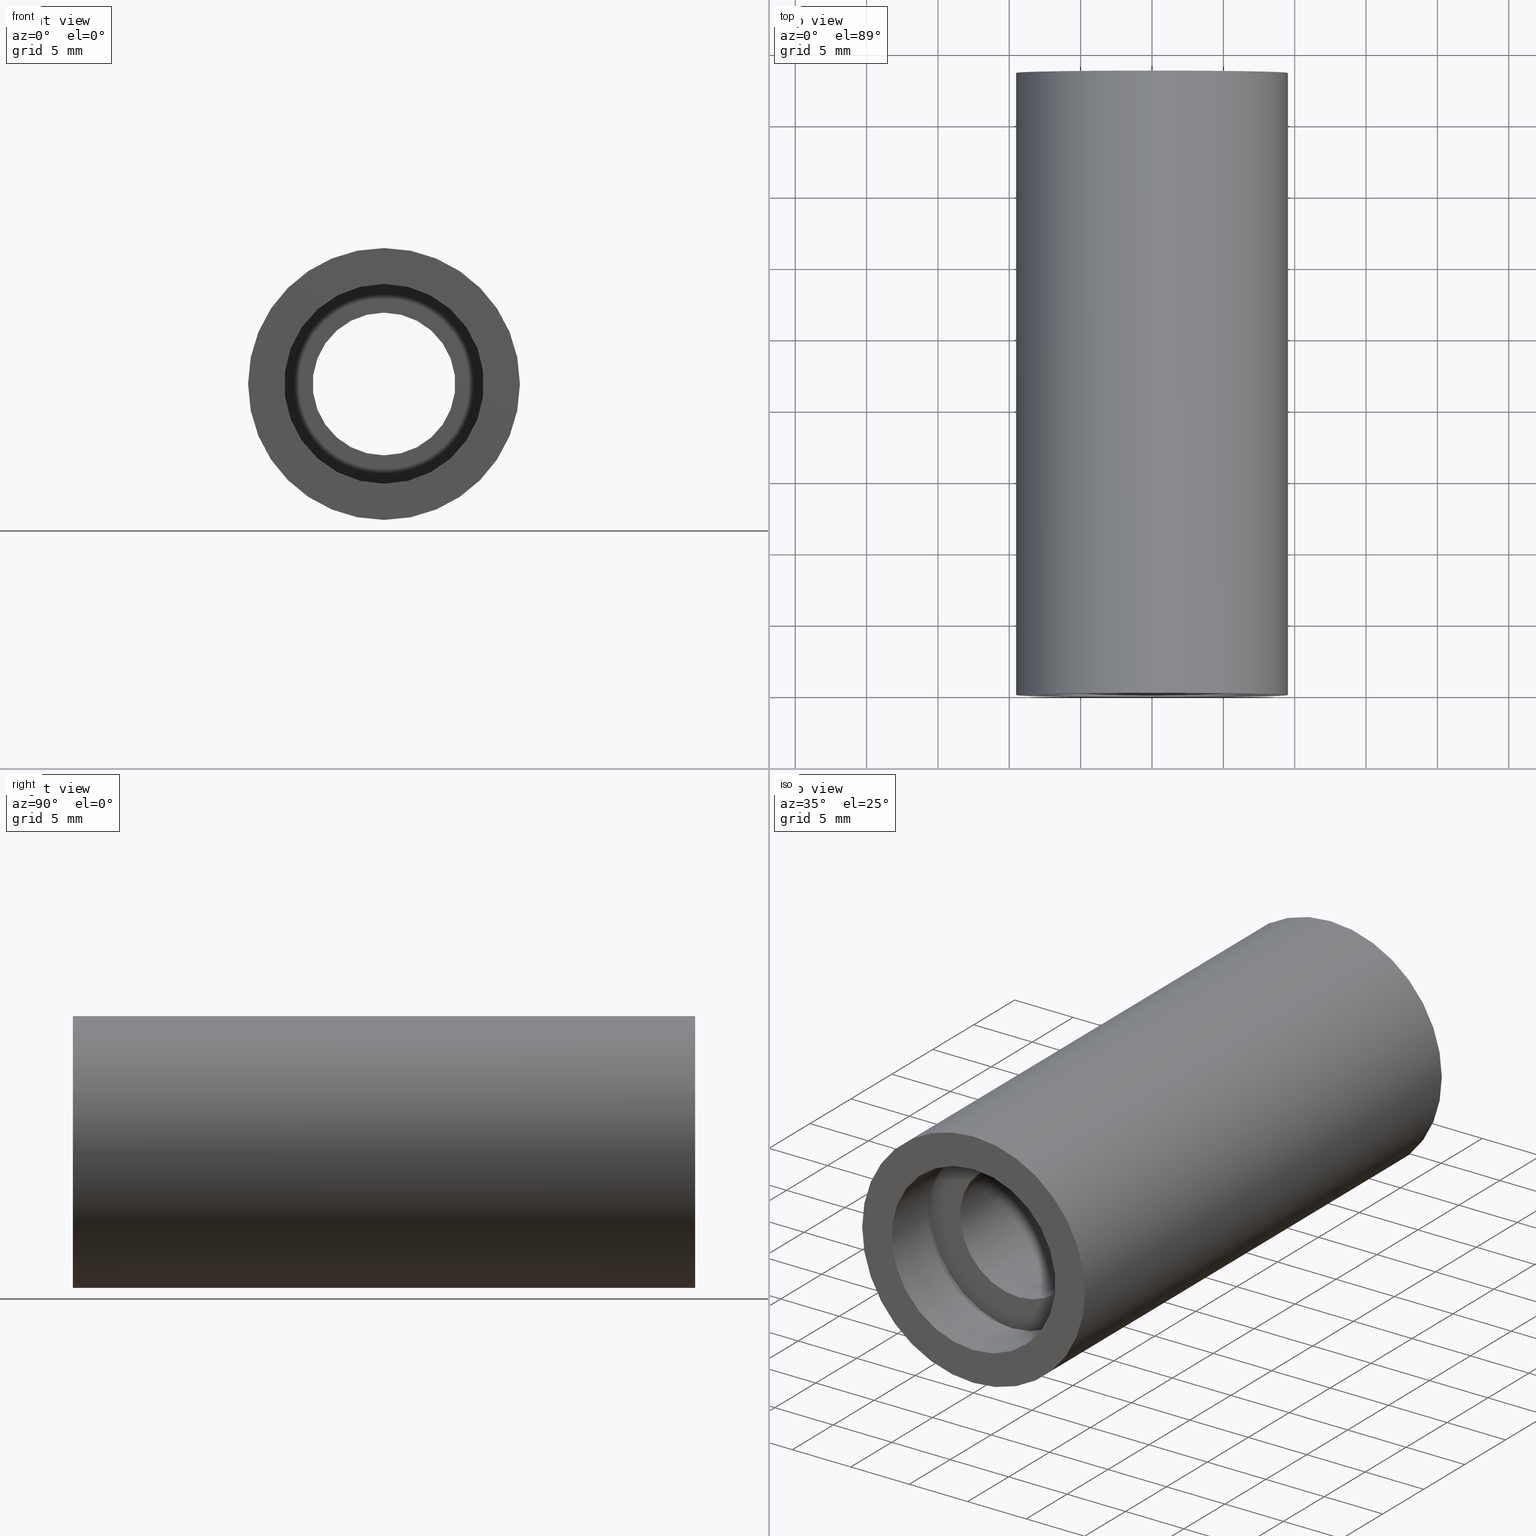
[diagram: canonical four-view strip — front | top / right | iso, engineering-drawing reading convention]
A machine part, canonical four-view strip (front | top / right | iso — engineering-drawing reading convention). The complete STEP part file that produces these views, byte-faithful:
ISO-10303-21;
HEADER;
FILE_DESCRIPTION (( 'STEP AP214' ),
    '1' );
FILE_NAME ('503096.STEP',
    '2019-09-11T08:00:23',
    ( '' ),
    ( '' ),
    'SwSTEP 2.0',
    'SolidWorks 2016',
    '' );
FILE_SCHEMA (( 'AUTOMOTIVE_DESIGN' ));
ENDSEC;

DATA;
#1 = AXIS2_PLACEMENT_3D ( 'NONE', #234, #435, #389 ) ;
#2 = PRESENTATION_STYLE_ASSIGNMENT (( #281 ) ) ;
#3 = ORIENTED_EDGE ( 'NONE', *, *, #343, .F. ) ;
#4 = DIRECTION ( 'NONE',  ( -0.0000000000000000000, 1.000000000000000000, -0.0000000000000000000 ) ) ;
#5 =( LENGTH_UNIT ( ) NAMED_UNIT ( * ) SI_UNIT ( .MILLI., .METRE. ) );
#6 = EDGE_CURVE ( 'NONE', #195, #543, #56, .T. ) ;
#7 = CARTESIAN_POINT ( 'NONE',  ( 0.0000000000000000000, 5.499999999999976900, 0.0000000000000000000 ) ) ;
#8 = CARTESIAN_POINT ( 'NONE',  ( 0.0000000000000000000, 161.3761669434274500, 0.0000000000000000000 ) ) ;
#9 = PRESENTATION_LAYER_ASSIGNMENT (  '', '', ( #105 ) ) ;
#10 = ORIENTED_EDGE ( 'NONE', *, *, #140, .F. ) ;
#11 =( NAMED_UNIT ( * ) PLANE_ANGLE_UNIT ( ) SI_UNIT ( $, .RADIAN. ) );
#12 = CARTESIAN_POINT ( 'NONE',  ( 0.0000000000000000000, 43.59999999999998700, 0.0000000000000000000 ) ) ;
#13 = ORIENTED_EDGE ( 'NONE', *, *, #353, .F. ) ;
#14 =( LENGTH_UNIT ( ) NAMED_UNIT ( * ) SI_UNIT ( .MILLI., .METRE. ) );
#15 = AXIS2_PLACEMENT_3D ( 'NONE', #260, #159, #317 ) ;
#16 = DIRECTION ( 'NONE',  ( -0.0000000000000000000, 1.000000000000000000, -0.0000000000000000000 ) ) ;
#17 = CIRCLE ( 'NONE', #482, 7.000000000000020400 ) ;
#18 = DIRECTION ( 'NONE',  ( 0.0000000000000000000, 0.0000000000000000000, 1.000000000000000000 ) ) ;
#19 = ORIENTED_EDGE ( 'NONE', *, *, #624, .T. ) ;
#20 =( NAMED_UNIT ( * ) PLANE_ANGLE_UNIT ( ) SI_UNIT ( $, .RADIAN. ) );
#21 = DIRECTION ( 'NONE',  ( -0.0000000000000000000, 1.000000000000000000, -0.0000000000000000000 ) ) ;
#22 = APPLICATION_CONTEXT ( 'automotive_design' ) ;
#23 = AXIS2_PLACEMENT_3D ( 'NONE', #605, #548, #369 ) ;
#24 = FILL_AREA_STYLE ('',( #31 ) ) ;
#25 = CARTESIAN_POINT ( 'NONE',  ( 0.0000000000000000000, 161.3761669434274500, 7.200000000000011700 ) ) ;
#26 = EDGE_LOOP ( 'NONE', ( #96, #129 ) ) ;
#27 = ORIENTED_EDGE ( 'NONE', *, *, #405, .F. ) ;
#28 = ORIENTED_EDGE ( 'NONE', *, *, #201, .F. ) ;
#29 = CARTESIAN_POINT ( 'NONE',  ( 9.307315673519907200E-016, 5.499999999999976900, -7.600000000000019200 ) ) ;
#30 = VECTOR ( 'NONE', #601, 1000.000000000000000 ) ;
#31 = FILL_AREA_STYLE_COLOUR ( '', #176 ) ;
#32 = PLANE ( 'NONE',  #1 ) ;
#33 = AXIS2_PLACEMENT_3D ( 'NONE', #423, #21, #413 ) ;
#34 = CARTESIAN_POINT ( 'NONE',  ( 0.0000000000000000000, -2.775557561562891400E-014, 9.525000000000019900 ) ) ;
#35 = AXIS2_PLACEMENT_3D ( 'NONE', #386, #241, #388 ) ;
#36 = UNCERTAINTY_MEASURE_WITH_UNIT (LENGTH_MEASURE( 1.000000000000000100E-005 ), #5, 'distance_accuracy_value', 'NONE');
#37 = ORIENTED_EDGE ( 'NONE', *, *, #445, .T. ) ;
#38 = ORIENTED_EDGE ( 'NONE', *, *, #475, .T. ) ;
#39 = VERTEX_POINT ( 'NONE', #192 ) ;
#40 =( GEOMETRIC_REPRESENTATION_CONTEXT ( 3 ) GLOBAL_UNCERTAINTY_ASSIGNED_CONTEXT ( ( #453 ) ) GLOBAL_UNIT_ASSIGNED_CONTEXT ( ( #324, #20, #415 ) ) REPRESENTATION_CONTEXT ( 'NONE', 'WORKASPACE' ) );
#41 = FACE_OUTER_BOUND ( 'NONE', #575, .T. ) ;
#42 = PLANE ( 'NONE',  #318 ) ;
#43 = LINE ( 'NONE', #556, #333 ) ;
#44 = MECHANICAL_DESIGN_GEOMETRIC_PRESENTATION_REPRESENTATION (  '', ( #236 ), #373 ) ;
#45 = CIRCLE ( 'NONE', #419, 7.600000000000019200 ) ;
#46 = DIRECTION ( 'NONE',  ( -0.0000000000000000000, 1.000000000000000000, -0.0000000000000000000 ) ) ;
#47 = EDGE_CURVE ( 'NONE', #167, #495, #444, .T. ) ;
#48 = CARTESIAN_POINT ( 'NONE',  ( 0.0000000000000000000, 43.59999999999998700, 0.0000000000000000000 ) ) ;
#49 = PRESENTATION_STYLE_ASSIGNMENT (( #313 ) ) ;
#50 = EDGE_LOOP ( 'NONE', ( #113, #53, #296, #216 ) ) ;
#51 = DIRECTION ( 'NONE',  ( -0.0000000000000000000, 1.000000000000000000, -0.0000000000000000000 ) ) ;
#52 =( NAMED_UNIT ( * ) SI_UNIT ( $, .STERADIAN. ) SOLID_ANGLE_UNIT ( ) );
#53 = ORIENTED_EDGE ( 'NONE', *, *, #182, .F. ) ;
#54 = MECHANICAL_DESIGN_GEOMETRIC_PRESENTATION_REPRESENTATION (  '', ( #57 ), #226 ) ;
#55 =( NAMED_UNIT ( * ) SI_UNIT ( $, .STERADIAN. ) SOLID_ANGLE_UNIT ( ) );
#56 = CIRCLE ( 'NONE', #332, 5.000000000000019500 ) ;
#57 = STYLED_ITEM ( 'NONE', ( #488 ), #613 ) ;
#58 = ADVANCED_FACE ( 'NONE', ( #549 ), #404, .T. ) ;
#59 = CIRCLE ( 'NONE', #578, 7.000000000000020400 ) ;
#60 = PLANE ( 'NONE',  #91 ) ;
#61 = DIRECTION ( 'NONE',  ( -0.0000000000000000000, 1.000000000000000000, -0.0000000000000000000 ) ) ;
#62 = CARTESIAN_POINT ( 'NONE',  ( 8.817456953860957100E-016, 161.3761669434274500, -7.200000000000011700 ) ) ;
#63 = AXIS2_PLACEMENT_3D ( 'NONE', #552, #507, #267 ) ;
#64 = CARTESIAN_POINT ( 'NONE',  ( 5.000000000000019500, 5.499999999999983100, 0.0000000000000000000 ) ) ;
#65 = SURFACE_STYLE_FILL_AREA ( #484 ) ;
#66 = DIRECTION ( 'NONE',  ( 0.0000000000000000000, 0.0000000000000000000, 1.000000000000000000 ) ) ;
#67 = CARTESIAN_POINT ( 'NONE',  ( 0.0000000000000000000, 43.59999999999998700, 0.0000000000000000000 ) ) ;
#68 = EDGE_LOOP ( 'NONE', ( #13, #28, #356, #608 ) ) ;
#69 = DIRECTION ( 'NONE',  ( 0.0000000000000000000, 0.0000000000000000000, 1.000000000000000000 ) ) ;
#70 = ORIENTED_EDGE ( 'NONE', *, *, #521, .T. ) ;
#71 = SURFACE_STYLE_FILL_AREA ( #104 ) ;
#72 = CARTESIAN_POINT ( 'NONE',  ( 8.817456953860959100E-016, 43.59999999999998700, -7.200000000000013500 ) ) ;
#73 = FACE_OUTER_BOUND ( 'NONE', #279, .T. ) ;
#74 = ADVANCED_FACE ( 'NONE', ( #461, #90 ), #42, .F. ) ;
#75 = CARTESIAN_POINT ( 'NONE',  ( 0.0000000000000000000, -2.775557561562891400E-014, 7.000000000000020400 ) ) ;
#76 = STYLED_ITEM ( 'NONE', ( #623 ), #146 ) ;
#77 =( LENGTH_UNIT ( ) NAMED_UNIT ( * ) SI_UNIT ( .MILLI., .METRE. ) );
#78 = CIRCLE ( 'NONE', #303, 7.600000000000019200 ) ;
#79 = CARTESIAN_POINT ( 'NONE',  ( 0.0000000000000000000, 161.3761669434274500, 0.0000000000000000000 ) ) ;
#80 = ORIENTED_EDGE ( 'NONE', *, *, #322, .F. ) ;
#81 = EDGE_CURVE ( 'NONE', #426, #531, #489, .T. ) ;
#82 = SURFACE_STYLE_FILL_AREA ( #466 ) ;
#83 = DIRECTION ( 'NONE',  ( 0.0000000000000000000, 0.0000000000000000000, 1.000000000000000000 ) ) ;
#84 = DIRECTION ( 'NONE',  ( -0.0000000000000000000, 1.000000000000000000, -0.0000000000000000000 ) ) ;
#85 = ORIENTED_EDGE ( 'NONE', *, *, #249, .F. ) ;
#86 = AXIS2_PLACEMENT_3D ( 'NONE', #7, #4, #455 ) ;
#87 = ORIENTED_EDGE ( 'NONE', *, *, #107, .T. ) ;
#88 = CYLINDRICAL_SURFACE ( 'NONE', #288, 7.600000000000019200 ) ;
#89 = CARTESIAN_POINT ( 'NONE',  ( 0.0000000000000000000, 5.499999999999976900, 0.0000000000000000000 ) ) ;
#90 = FACE_OUTER_BOUND ( 'NONE', #427, .T. ) ;
#91 = AXIS2_PLACEMENT_3D ( 'NONE', #64, #614, #276 ) ;
#92 = DIRECTION ( 'NONE',  ( -0.0000000000000000000, 1.000000000000000000, -0.0000000000000000000 ) ) ;
#93 = ORIENTED_EDGE ( 'NONE', *, *, #533, .T. ) ;
#94 = DIRECTION ( 'NONE',  ( -0.0000000000000000000, 1.000000000000000000, -0.0000000000000000000 ) ) ;
#95 = EDGE_CURVE ( 'NONE', #531, #39, #257, .T. ) ;
#96 = ORIENTED_EDGE ( 'NONE', *, *, #182, .T. ) ;
#97 = DIRECTION ( 'NONE',  ( -0.0000000000000000000, 1.000000000000000000, -0.0000000000000000000 ) ) ;
#98 = CARTESIAN_POINT ( 'NONE',  ( 9.307315673519907200E-016, 161.3761669434274500, -7.600000000000019200 ) ) ;
#99 = VERTEX_POINT ( 'NONE', #447 ) ;
#100 = DIRECTION ( 'NONE',  ( 0.0000000000000000000, 0.0000000000000000000, 1.000000000000000000 ) ) ;
#101 = DIRECTION ( 'NONE',  ( -0.0000000000000000000, 1.000000000000000000, -0.0000000000000000000 ) ) ;
#102 = ORIENTED_EDGE ( 'NONE', *, *, #179, .T. ) ;
#103 = FACE_OUTER_BOUND ( 'NONE', #588, .T. ) ;
#104 = FILL_AREA_STYLE ('',( #587 ) ) ;
#105 = STYLED_ITEM ( 'NONE', ( #49 ), #272 ) ;
#106 = FILL_AREA_STYLE_COLOUR ( '', #214 ) ;
#107 = EDGE_CURVE ( 'NONE', #543, #195, #512, .T. ) ;
#108 = DIRECTION ( 'NONE',  ( -0.0000000000000000000, 1.000000000000000000, -0.0000000000000000000 ) ) ;
#109 = CYLINDRICAL_SURFACE ( 'NONE', #560, 5.000000000000019500 ) ;
#110 = APPLICATION_CONTEXT ( 'automotive_design' ) ;
#111 = FACE_BOUND ( 'NONE', #506, .T. ) ;
#112 = CARTESIAN_POINT ( 'NONE',  ( 8.817456953860957100E-016, 39.09999999999999400, -7.200000000000011700 ) ) ;
#113 = ORIENTED_EDGE ( 'NONE', *, *, #568, .F. ) ;
#114 = EDGE_LOOP ( 'NONE', ( #187, #439, #344, #37 ) ) ;
#115 = VECTOR ( 'NONE', #94, 1000.000000000000000 ) ;
#116 = DIRECTION ( 'NONE',  ( 0.0000000000000000000, 0.0000000000000000000, 1.000000000000000000 ) ) ;
#117 = CIRCLE ( 'NONE', #35, 9.525000000000019900 ) ;
#118 = ORIENTED_EDGE ( 'NONE', *, *, #475, .F. ) ;
#119 = UNCERTAINTY_MEASURE_WITH_UNIT (LENGTH_MEASURE( 1.000000000000000100E-005 ), #381, 'distance_accuracy_value', 'NONE');
#120 = DIRECTION ( 'NONE',  ( 0.0000000000000000000, 0.0000000000000000000, 1.000000000000000000 ) ) ;
#121 =( GEOMETRIC_REPRESENTATION_CONTEXT ( 3 ) GLOBAL_UNCERTAINTY_ASSIGNED_CONTEXT ( ( #36 ) ) GLOBAL_UNIT_ASSIGNED_CONTEXT ( ( #5, #355, #544 ) ) REPRESENTATION_CONTEXT ( 'NONE', 'WORKASPACE' ) );
#122 = DIRECTION ( 'NONE',  ( -0.0000000000000000000, 1.000000000000000000, -0.0000000000000000000 ) ) ;
#123 = DIRECTION ( 'NONE',  ( 0.0000000000000000000, 0.0000000000000000000, 1.000000000000000000 ) ) ;
#124 = ADVANCED_FACE ( 'NONE', ( #592 ), #135, .T. ) ;
#125 = COLOUR_RGB ( '',1.000000000000000000, 1.000000000000000000, 1.000000000000000000 ) ;
#126 = SURFACE_SIDE_STYLE ('',( #370 ) ) ;
#127 = FACE_BOUND ( 'NONE', #26, .T. ) ;
#128 = UNCERTAINTY_MEASURE_WITH_UNIT (LENGTH_MEASURE( 1.000000000000000100E-005 ), #265, 'distance_accuracy_value', 'NONE');
#129 = ORIENTED_EDGE ( 'NONE', *, *, #140, .T. ) ;
#130 = DIRECTION ( 'NONE',  ( 0.0000000000000000000, 0.0000000000000000000, 1.000000000000000000 ) ) ;
#131 = AXIS2_PLACEMENT_3D ( 'NONE', #152, #307, #145 ) ;
#132 = DIRECTION ( 'NONE',  ( -0.0000000000000000000, 1.000000000000000000, -0.0000000000000000000 ) ) ;
#133 = STYLED_ITEM ( 'NONE', ( #468 ), #593 ) ;
#134 = FILL_AREA_STYLE_COLOUR ( '', #450 ) ;
#135 = CYLINDRICAL_SURFACE ( 'NONE', #163, 9.525000000000019900 ) ;
#136 = CARTESIAN_POINT ( 'NONE',  ( 0.0000000000000000000, 161.3761669434274500, 5.000000000000019500 ) ) ;
#137 = ORIENTED_EDGE ( 'NONE', *, *, #285, .F. ) ;
#138 = AXIS2_PLACEMENT_3D ( 'NONE', #363, #18, #215 ) ;
#139 = EDGE_LOOP ( 'NONE', ( #70, #599 ) ) ;
#140 = EDGE_CURVE ( 'NONE', #219, #99, #177, .T. ) ;
#141 = CIRCLE ( 'NONE', #558, 7.000000000000020400 ) ;
#142 = CARTESIAN_POINT ( 'NONE',  ( 5.000000000000019500, 38.09999999999998700, 0.0000000000000000000 ) ) ;
#143 = ORIENTED_EDGE ( 'NONE', *, *, #521, .F. ) ;
#144 = DIRECTION ( 'NONE',  ( -0.0000000000000000000, 1.000000000000000000, -0.0000000000000000000 ) ) ;
#145 = DIRECTION ( 'NONE',  ( 0.0000000000000000000, 0.0000000000000000000, 1.000000000000000000 ) ) ;
#146 = MANIFOLD_SOLID_BREP ( '��ת1', #242 ) ;
#147 = CARTESIAN_POINT ( 'NONE',  ( 0.0000000000000000000, 5.499999999999976900, 0.0000000000000000000 ) ) ;
#148 = CARTESIAN_POINT ( 'NONE',  ( 0.0000000000000000000, 38.09999999999999400, 5.000000000000019500 ) ) ;
#149 = CARTESIAN_POINT ( 'NONE',  ( 0.0000000000000000000, 38.09999999999999400, 0.0000000000000000000 ) ) ;
#150 =( NAMED_UNIT ( * ) PLANE_ANGLE_UNIT ( ) SI_UNIT ( $, .RADIAN. ) );
#151 =( GEOMETRIC_REPRESENTATION_CONTEXT ( 3 ) GLOBAL_UNCERTAINTY_ASSIGNED_CONTEXT ( ( #357 ) ) GLOBAL_UNIT_ASSIGNED_CONTEXT ( ( #14, #11, #161 ) ) REPRESENTATION_CONTEXT ( 'NONE', 'WORKASPACE' ) );
#152 = CARTESIAN_POINT ( 'NONE',  ( 0.0000000000000000000, -2.775557561562891400E-014, 0.0000000000000000000 ) ) ;
#153 = ORIENTED_EDGE ( 'NONE', *, *, #585, .F. ) ;
#154 = ORIENTED_EDGE ( 'NONE', *, *, #81, .F. ) ;
#155 = ADVANCED_FACE ( 'NONE', ( #246 ), #485, .F. ) ;
#156 = AXIS2_PLACEMENT_3D ( 'NONE', #218, #479, #69 ) ;
#157 = ORIENTED_EDGE ( 'NONE', *, *, #367, .T. ) ;
#158 = CIRCLE ( 'NONE', #537, 9.525000000000019900 ) ;
#159 = DIRECTION ( 'NONE',  ( 0.0000000000000000000, -1.000000000000000000, 0.0000000000000000000 ) ) ;
#160 = CIRCLE ( 'NONE', #33, 7.200000000000011700 ) ;
#161 =( NAMED_UNIT ( * ) SI_UNIT ( $, .STERADIAN. ) SOLID_ANGLE_UNIT ( ) );
#162 = SURFACE_SIDE_STYLE ('',( #82 ) ) ;
#163 = AXIS2_PLACEMENT_3D ( 'NONE', #499, #582, #541 ) ;
#164 = PLANE ( 'NONE',  #15 ) ;
#165 = AXIS2_PLACEMENT_3D ( 'NONE', #79, #621, #83 ) ;
#166 = VECTOR ( 'NONE', #84, 1000.000000000000000 ) ;
#167 = VERTEX_POINT ( 'NONE', #252 ) ;
#168 =( NAMED_UNIT ( * ) PLANE_ANGLE_UNIT ( ) SI_UNIT ( $, .RADIAN. ) );
#169 = CARTESIAN_POINT ( 'NONE',  ( 0.0000000000000000000, 39.09999999999999400, 0.0000000000000000000 ) ) ;
#170 = ORIENTED_EDGE ( 'NONE', *, *, #95, .T. ) ;
#171 = PRODUCT_DEFINITION_CONTEXT ( 'detailed design', #110, 'design' ) ;
#172 = ORIENTED_EDGE ( 'NONE', *, *, #528, .T. ) ;
#173 = DIRECTION ( 'NONE',  ( 0.0000000000000000000, 0.0000000000000000000, 1.000000000000000000 ) ) ;
#174 = EDGE_LOOP ( 'NONE', ( #342, #286, #118, #563 ) ) ;
#175 = ADVANCED_FACE ( 'NONE', ( #360 ), #220, .F. ) ;
#176 = COLOUR_RGB ( '',1.000000000000000000, 1.000000000000000000, 1.000000000000000000 ) ;
#177 = CIRCLE ( 'NONE', #295, 5.000000000000019500 ) ;
#178 = SURFACE_STYLE_FILL_AREA ( #474 ) ;
#179 = EDGE_CURVE ( 'NONE', #561, #39, #376, .T. ) ;
#180 = CARTESIAN_POINT ( 'NONE',  ( 9.307315673519907200E-016, 38.09999999999999400, -7.600000000000019200 ) ) ;
#181 = SURFACE_SIDE_STYLE ('',( #65 ) ) ;
#182 = EDGE_CURVE ( 'NONE', #99, #219, #240, .T. ) ;
#183 = VERTEX_POINT ( 'NONE', #456 ) ;
#184 = EDGE_LOOP ( 'NONE', ( #154, #172, #102, #547 ) ) ;
#185 = PRODUCT_DEFINITION_FORMATION_WITH_SPECIFIED_SOURCE ( '�κ�', '', #383, .NOT_KNOWN. ) ;
#186 = DIRECTION ( 'NONE',  ( -0.0000000000000000000, 1.000000000000000000, -0.0000000000000000000 ) ) ;
#187 = ORIENTED_EDGE ( 'NONE', *, *, #255, .F. ) ;
#188 = VERTEX_POINT ( 'NONE', #459 ) ;
#189 = MECHANICAL_DESIGN_GEOMETRIC_PRESENTATION_REPRESENTATION (  '', ( #76 ), #121 ) ;
#190 = CARTESIAN_POINT ( 'NONE',  ( 1.166476076187856400E-015, 161.3761669434274500, -9.525000000000019900 ) ) ;
#191 = COLOUR_RGB ( '',1.000000000000000000, 1.000000000000000000, 1.000000000000000000 ) ;
#192 = CARTESIAN_POINT ( 'NONE',  ( 0.0000000000000000000, 43.59999999999998700, 9.525000000000019900 ) ) ;
#193 = CARTESIAN_POINT ( 'NONE',  ( 0.0000000000000000000, 39.09999999999999400, 7.600000000000019200 ) ) ;
#194 = AXIS2_PLACEMENT_3D ( 'NONE', #248, #395, #254 ) ;
#195 = VERTEX_POINT ( 'NONE', #148 ) ;
#196 = EDGE_LOOP ( 'NONE', ( #325, #619 ) ) ;
#197 = AXIS2_PLACEMENT_3D ( 'NONE', #289, #525, #130 ) ;
#198 = CARTESIAN_POINT ( 'NONE',  ( 0.0000000000000000000, 161.3761669434274500, 0.0000000000000000000 ) ) ;
#199 = CARTESIAN_POINT ( 'NONE',  ( 0.0000000000000000000, 161.3761669434274500, 9.525000000000019900 ) ) ;
#200 = FILL_AREA_STYLE_COLOUR ( '', #277 ) ;
#201 = EDGE_CURVE ( 'NONE', #428, #498, #78, .T. ) ;
#202 = VERTEX_POINT ( 'NONE', #308 ) ;
#203 = FILL_AREA_STYLE ('',( #256 ) ) ;
#204 = ORIENTED_EDGE ( 'NONE', *, *, #411, .F. ) ;
#205 = CIRCLE ( 'NONE', #211, 7.600000000000019200 ) ;
#206 = FACE_BOUND ( 'NONE', #311, .T. ) ;
#207 = CARTESIAN_POINT ( 'NONE',  ( 7.000000000000020400, -1.634585625335647100E-014, 0.0000000000000000000 ) ) ;
#208 = DIRECTION ( 'NONE',  ( 0.0000000000000000000, 0.0000000000000000000, 1.000000000000000000 ) ) ;
#209 = EDGE_CURVE ( 'NONE', #561, #426, #554, .T. ) ;
#210 = CARTESIAN_POINT ( 'NONE',  ( 8.572527594031496900E-016, 4.499999999999976000, -7.000000000000020400 ) ) ;
#211 = AXIS2_PLACEMENT_3D ( 'NONE', #291, #576, #231 ) ;
#212 = APPLICATION_PROTOCOL_DEFINITION ( 'draft international standard', 'automotive_design', 1998, #22 ) ;
#213 = ORIENTED_EDGE ( 'NONE', *, *, #501, .T. ) ;
#214 = COLOUR_RGB ( '',1.000000000000000000, 1.000000000000000000, 1.000000000000000000 ) ;
#215 = DIRECTION ( 'NONE',  ( 1.000000000000000000, 0.0000000000000000000, 0.0000000000000000000 ) ) ;
#216 = ORIENTED_EDGE ( 'NONE', *, *, #6, .T. ) ;
#217 = CARTESIAN_POINT ( 'NONE',  ( 8.572527594031496900E-016, 161.3761669434274500, -7.000000000000020400 ) ) ;
#218 = CARTESIAN_POINT ( 'NONE',  ( 0.0000000000000000000, 161.3761669434274500, 0.0000000000000000000 ) ) ;
#219 = VERTEX_POINT ( 'NONE', #302 ) ;
#220 = CYLINDRICAL_SURFACE ( 'NONE', #490, 7.000000000000020400 ) ;
#221 = CARTESIAN_POINT ( 'NONE',  ( 8.572527594031496900E-016, -2.775557561562891400E-014, -7.000000000000020400 ) ) ;
#222 = ORIENTED_EDGE ( 'NONE', *, *, #209, .F. ) ;
#223 = PRODUCT_RELATED_PRODUCT_CATEGORY ( 'part', '', ( #383 ) ) ;
#224 = COLOUR_RGB ( '',1.000000000000000000, 1.000000000000000000, 1.000000000000000000 ) ;
#225 = DIRECTION ( 'NONE',  ( -0.0000000000000000000, 1.000000000000000000, -0.0000000000000000000 ) ) ;
#226 =( GEOMETRIC_REPRESENTATION_CONTEXT ( 3 ) GLOBAL_UNCERTAINTY_ASSIGNED_CONTEXT ( ( #128 ) ) GLOBAL_UNIT_ASSIGNED_CONTEXT ( ( #265, #595, #366 ) ) REPRESENTATION_CONTEXT ( 'NONE', 'WORKASPACE' ) );
#227 = FILL_AREA_STYLE_COLOUR ( '', #191 ) ;
#228 = AXIS2_PLACEMENT_3D ( 'NONE', #245, #292, #337 ) ;
#229 = CARTESIAN_POINT ( 'NONE',  ( 0.0000000000000000000, 4.499999999999976000, 7.600000000000019200 ) ) ;
#230 = EDGE_CURVE ( 'NONE', #430, #235, #45, .T. ) ;
#231 = DIRECTION ( 'NONE',  ( 0.0000000000000000000, 0.0000000000000000000, 1.000000000000000000 ) ) ;
#232 = ADVANCED_FACE ( 'NONE', ( #336 ), #492, .F. ) ;
#233 = LINE ( 'NONE', #98, #534 ) ;
#234 = CARTESIAN_POINT ( 'NONE',  ( 7.000000000000020400, 4.499999999999983100, 0.0000000000000000000 ) ) ;
#235 = VERTEX_POINT ( 'NONE', #193 ) ;
#236 = STYLED_ITEM ( 'NONE', ( #2 ), #433 ) ;
#237 = CARTESIAN_POINT ( 'NONE',  ( 0.0000000000000000000, 39.09999999999999400, 0.0000000000000000000 ) ) ;
#238 = PRESENTATION_LAYER_ASSIGNMENT (  '', '', ( #133 ) ) ;
#239 = ORIENTED_EDGE ( 'NONE', *, *, #429, .T. ) ;
#240 = CIRCLE ( 'NONE', #86, 5.000000000000019500 ) ;
#241 = DIRECTION ( 'NONE',  ( -0.0000000000000000000, 1.000000000000000000, -0.0000000000000000000 ) ) ;
#242 = CLOSED_SHELL ( 'NONE', ( #593, #546, #519, #463, #433, #124, #362, #58, #261, #232, #569, #283, #74, #613, #414, #155, #610, #175 ) ) ;
#243 = VECTOR ( 'NONE', #132, 1000.000000000000000 ) ;
#244 = LINE ( 'NONE', #25, #442 ) ;
#245 = CARTESIAN_POINT ( 'NONE',  ( 0.0000000000000000000, 161.3761669434274500, 0.0000000000000000000 ) ) ;
#246 = FACE_OUTER_BOUND ( 'NONE', #68, .T. ) ;
#247 = DIRECTION ( 'NONE',  ( 0.0000000000000000000, 0.0000000000000000000, 1.000000000000000000 ) ) ;
#248 = CARTESIAN_POINT ( 'NONE',  ( 0.0000000000000000000, 161.3761669434274500, 0.0000000000000000000 ) ) ;
#249 = EDGE_CURVE ( 'NONE', #451, #440, #17, .T. ) ;
#250 = CIRCLE ( 'NONE', #340, 7.000000000000020400 ) ;
#251 = VECTOR ( 'NONE', #467, 1000.000000000000000 ) ;
#252 = CARTESIAN_POINT ( 'NONE',  ( 0.0000000000000000000, 5.499999999999976900, 7.600000000000019200 ) ) ;
#253 = ORIENTED_EDGE ( 'NONE', *, *, #536, .T. ) ;
#254 = DIRECTION ( 'NONE',  ( 0.0000000000000000000, 0.0000000000000000000, 1.000000000000000000 ) ) ;
#255 = EDGE_CURVE ( 'NONE', #545, #430, #233, .T. ) ;
#256 = FILL_AREA_STYLE_COLOUR ( '', #320 ) ;
#257 = CIRCLE ( 'NONE', #399, 9.525000000000019900 ) ;
#258 = CARTESIAN_POINT ( 'NONE',  ( 0.0000000000000000000, 39.09999999999999400, 0.0000000000000000000 ) ) ;
#259 = AXIS2_PLACEMENT_3D ( 'NONE', #89, #92, #349 ) ;
#260 = CARTESIAN_POINT ( 'NONE',  ( 7.200000000000012600, 43.59999999999998700, 0.0000000000000000000 ) ) ;
#261 = ADVANCED_FACE ( 'NONE', ( #206, #297 ), #164, .F. ) ;
#262 = CARTESIAN_POINT ( 'NONE',  ( 9.307315673519907200E-016, 161.3761669434274500, -7.600000000000019200 ) ) ;
#263 = EDGE_CURVE ( 'NONE', #451, #293, #462, .T. ) ;
#264 = FACE_OUTER_BOUND ( 'NONE', #458, .T. ) ;
#265 =( LENGTH_UNIT ( ) NAMED_UNIT ( * ) SI_UNIT ( .MILLI., .METRE. ) );
#266 = CIRCLE ( 'NONE', #23, 7.200000000000012600 ) ;
#267 = DIRECTION ( 'NONE',  ( 0.0000000000000000000, 0.0000000000000000000, 1.000000000000000000 ) ) ;
#268 = VERTEX_POINT ( 'NONE', #581 ) ;
#269 = CARTESIAN_POINT ( 'NONE',  ( 0.0000000000000000000, 4.499999999999976000, 0.0000000000000000000 ) ) ;
#270 = DIRECTION ( 'NONE',  ( -0.0000000000000000000, 1.000000000000000000, 0.0000000000000000000 ) ) ;
#271 = SURFACE_STYLE_USAGE ( .BOTH. , #126 ) ;
#272 = ADVANCED_BREP_SHAPE_REPRESENTATION ( '503096', ( #146, #138 ), #40 ) ;
#273 = AXIS2_PLACEMENT_3D ( 'NONE', #207, #270, #551 ) ;
#274 = ORIENTED_EDGE ( 'NONE', *, *, #378, .T. ) ;
#275 = MECHANICAL_DESIGN_GEOMETRIC_PRESENTATION_REPRESENTATION (  '', ( #133 ), #305 ) ;
#276 = DIRECTION ( 'NONE',  ( 0.0000000000000000000, 0.0000000000000000000, 1.000000000000000000 ) ) ;
#277 = COLOUR_RGB ( '',1.000000000000000000, 1.000000000000000000, 1.000000000000000000 ) ;
#278 = CARTESIAN_POINT ( 'NONE',  ( 1.166476076187856400E-015, 43.59999999999998700, -9.525000000000019900 ) ) ;
#279 = EDGE_LOOP ( 'NONE', ( #80, #562, #274, #566 ) ) ;
#280 = ORIENTED_EDGE ( 'NONE', *, *, #367, .F. ) ;
#281 = SURFACE_STYLE_USAGE ( .BOTH. , #607 ) ;
#282 = ORIENTED_EDGE ( 'NONE', *, *, #624, .F. ) ;
#283 = ADVANCED_FACE ( 'NONE', ( #518 ), #385, .F. ) ;
#284 = SHAPE_DEFINITION_REPRESENTATION ( #583, #272 ) ;
#285 = EDGE_CURVE ( 'NONE', #495, #167, #396, .T. ) ;
#286 = ORIENTED_EDGE ( 'NONE', *, *, #81, .T. ) ;
#287 = CARTESIAN_POINT ( 'NONE',  ( 6.123233995736789000E-016, 161.3761669434274500, -5.000000000000019500 ) ) ;
#288 = AXIS2_PLACEMENT_3D ( 'NONE', #559, #425, #173 ) ;
#289 = CARTESIAN_POINT ( 'NONE',  ( 7.200000000000011700, 39.09999999999998700, 0.0000000000000000000 ) ) ;
#290 = FACE_OUTER_BOUND ( 'NONE', #50, .T. ) ;
#291 = CARTESIAN_POINT ( 'NONE',  ( 0.0000000000000000000, 38.09999999999999400, 0.0000000000000000000 ) ) ;
#292 = DIRECTION ( 'NONE',  ( -0.0000000000000000000, 1.000000000000000000, -0.0000000000000000000 ) ) ;
#293 = VERTEX_POINT ( 'NONE', #210 ) ;
#294 = ORIENTED_EDGE ( 'NONE', *, *, #47, .F. ) ;
#295 = AXIS2_PLACEMENT_3D ( 'NONE', #147, #51, #401 ) ;
#296 = ORIENTED_EDGE ( 'NONE', *, *, #571, .T. ) ;
#297 = FACE_OUTER_BOUND ( 'NONE', #586, .T. ) ;
#298 = DIRECTION ( 'NONE',  ( 0.0000000000000000000, -0.0000000000000000000, -1.000000000000000000 ) ) ;
#299 = DIRECTION ( 'NONE',  ( -0.0000000000000000000, 1.000000000000000000, -0.0000000000000000000 ) ) ;
#300 = SURFACE_STYLE_FILL_AREA ( #203 ) ;
#301 =( LENGTH_UNIT ( ) NAMED_UNIT ( * ) SI_UNIT ( .MILLI., .METRE. ) );
#302 = CARTESIAN_POINT ( 'NONE',  ( 6.123233995736789000E-016, 5.499999999999976900, -5.000000000000019500 ) ) ;
#303 = AXIS2_PLACEMENT_3D ( 'NONE', #354, #351, #403 ) ;
#304 = LINE ( 'NONE', #287, #243 ) ;
#305 =( GEOMETRIC_REPRESENTATION_CONTEXT ( 3 ) GLOBAL_UNCERTAINTY_ASSIGNED_CONTEXT ( ( #602 ) ) GLOBAL_UNIT_ASSIGNED_CONTEXT ( ( #341, #487, #523 ) ) REPRESENTATION_CONTEXT ( 'NONE', 'WORKASPACE' ) );
#306 = SURFACE_STYLE_USAGE ( .BOTH. , #452 ) ;
#307 = DIRECTION ( 'NONE',  ( -0.0000000000000000000, 1.000000000000000000, -0.0000000000000000000 ) ) ;
#308 = CARTESIAN_POINT ( 'NONE',  ( 0.0000000000000000000, 38.09999999999999400, 7.600000000000019200 ) ) ;
#309 = ORIENTED_EDGE ( 'NONE', *, *, #255, .T. ) ;
#310 = ORIENTED_EDGE ( 'NONE', *, *, #445, .F. ) ;
#311 = EDGE_LOOP ( 'NONE', ( #280, #529 ) ) ;
#312 = DIRECTION ( 'NONE',  ( 0.0000000000000000000, 0.0000000000000000000, 1.000000000000000000 ) ) ;
#313 = SURFACE_STYLE_USAGE ( .BOTH. , #162 ) ;
#314 = VECTOR ( 'NONE', #515, 1000.000000000000000 ) ;
#315 = VECTOR ( 'NONE', #299, 1000.000000000000000 ) ;
#316 = AXIS2_PLACEMENT_3D ( 'NONE', #469, #604, #208 ) ;
#317 = DIRECTION ( 'NONE',  ( 0.0000000000000000000, -0.0000000000000000000, -1.000000000000000000 ) ) ;
#318 = AXIS2_PLACEMENT_3D ( 'NONE', #142, #443, #298 ) ;
#319 = DIRECTION ( 'NONE',  ( -0.0000000000000000000, 1.000000000000000000, -0.0000000000000000000 ) ) ;
#320 = COLOUR_RGB ( '',1.000000000000000000, 1.000000000000000000, 1.000000000000000000 ) ;
#321 = CARTESIAN_POINT ( 'NONE',  ( 9.307315673519907200E-016, 39.09999999999999400, -7.600000000000019200 ) ) ;
#322 = EDGE_CURVE ( 'NONE', #412, #183, #160, .T. ) ;
#323 = CYLINDRICAL_SURFACE ( 'NONE', #228, 7.000000000000020400 ) ;
#324 =( LENGTH_UNIT ( ) NAMED_UNIT ( * ) SI_UNIT ( .MILLI., .METRE. ) );
#325 = ORIENTED_EDGE ( 'NONE', *, *, #6, .F. ) ;
#326 = CARTESIAN_POINT ( 'NONE',  ( 0.0000000000000000000, -2.775557561562891400E-014, 0.0000000000000000000 ) ) ;
#327 = ORIENTED_EDGE ( 'NONE', *, *, #508, .T. ) ;
#328 = EDGE_LOOP ( 'NONE', ( #222, #486 ) ) ;
#329 = ORIENTED_EDGE ( 'NONE', *, *, #201, .T. ) ;
#330 =( NAMED_UNIT ( * ) SI_UNIT ( $, .STERADIAN. ) SOLID_ANGLE_UNIT ( ) );
#331 = PRODUCT_DEFINITION ( 'δ֪', '', #185, #171 ) ;
#332 = AXIS2_PLACEMENT_3D ( 'NONE', #535, #530, #247 ) ;
#333 = VECTOR ( 'NONE', #61, 1000.000000000000000 ) ;
#334 = DIRECTION ( 'NONE',  ( -0.0000000000000000000, 1.000000000000000000, -0.0000000000000000000 ) ) ;
#335 = CARTESIAN_POINT ( 'NONE',  ( 0.0000000000000000000, 161.3761669434274500, 0.0000000000000000000 ) ) ;
#336 = FACE_OUTER_BOUND ( 'NONE', #393, .T. ) ;
#337 = DIRECTION ( 'NONE',  ( 0.0000000000000000000, 0.0000000000000000000, 1.000000000000000000 ) ) ;
#338 = EDGE_LOOP ( 'NONE', ( #329, #19 ) ) ;
#339 = PRESENTATION_LAYER_ASSIGNMENT (  '', '', ( #236 ) ) ;
#340 = AXIS2_PLACEMENT_3D ( 'NONE', #434, #186, #527 ) ;
#341 =( LENGTH_UNIT ( ) NAMED_UNIT ( * ) SI_UNIT ( .MILLI., .METRE. ) );
#342 = ORIENTED_EDGE ( 'NONE', *, *, #209, .T. ) ;
#343 = EDGE_CURVE ( 'NONE', #428, #167, #43, .T. ) ;
#344 = ORIENTED_EDGE ( 'NONE', *, *, #505, .T. ) ;
#345 = DIRECTION ( 'NONE',  ( -0.0000000000000000000, 1.000000000000000000, -0.0000000000000000000 ) ) ;
#346 = CIRCLE ( 'NONE', #603, 7.200000000000011700 ) ;
#347 = PRESENTATION_STYLE_ASSIGNMENT (( #564 ) ) ;
#348 = MECHANICAL_DESIGN_GEOMETRIC_PRESENTATION_REPRESENTATION (  '', ( #105 ), #151 ) ;
#349 = DIRECTION ( 'NONE',  ( 0.0000000000000000000, 0.0000000000000000000, 1.000000000000000000 ) ) ;
#350 = AXIS2_PLACEMENT_3D ( 'NONE', #198, #538, #100 ) ;
#351 = DIRECTION ( 'NONE',  ( -0.0000000000000000000, 1.000000000000000000, -0.0000000000000000000 ) ) ;
#352 = DIRECTION ( 'NONE',  ( 0.0000000000000000000, 0.0000000000000000000, 1.000000000000000000 ) ) ;
#353 = EDGE_CURVE ( 'NONE', #498, #495, #446, .T. ) ;
#354 = CARTESIAN_POINT ( 'NONE',  ( 0.0000000000000000000, 4.499999999999976000, 0.0000000000000000000 ) ) ;
#355 =( NAMED_UNIT ( * ) PLANE_ANGLE_UNIT ( ) SI_UNIT ( $, .RADIAN. ) );
#356 = ORIENTED_EDGE ( 'NONE', *, *, #343, .T. ) ;
#357 = UNCERTAINTY_MEASURE_WITH_UNIT (LENGTH_MEASURE( 1.000000000000000100E-005 ), #14, 'distance_accuracy_value', 'NONE');
#358 = SURFACE_SIDE_STYLE ('',( #300 ) ) ;
#359 = SURFACE_STYLE_FILL_AREA ( #24 ) ;
#360 = FACE_OUTER_BOUND ( 'NONE', #454, .T. ) ;
#361 = SURFACE_STYLE_USAGE ( .BOTH. , #406 ) ;
#362 = ADVANCED_FACE ( 'NONE', ( #417, #111 ), #460, .F. ) ;
#363 = CARTESIAN_POINT ( 'NONE',  ( 0.0000000000000000000, 0.0000000000000000000, 0.0000000000000000000 ) ) ;
#364 = MECHANICAL_DESIGN_GEOMETRIC_PRESENTATION_REPRESENTATION (  '', ( #384 ), #392 ) ;
#365 = PRESENTATION_LAYER_ASSIGNMENT (  '', '', ( #57 ) ) ;
#366 =( NAMED_UNIT ( * ) SI_UNIT ( $, .STERADIAN. ) SOLID_ANGLE_UNIT ( ) );
#367 = EDGE_CURVE ( 'NONE', #268, #540, #266, .T. ) ;
#368 = DIRECTION ( 'NONE',  ( 0.0000000000000000000, 0.0000000000000000000, 1.000000000000000000 ) ) ;
#369 = DIRECTION ( 'NONE',  ( 0.0000000000000000000, 0.0000000000000000000, 1.000000000000000000 ) ) ;
#370 = SURFACE_STYLE_FILL_AREA ( #432 ) ;
#371 = CIRCLE ( 'NONE', #524, 7.200000000000012600 ) ;
#372 = EDGE_LOOP ( 'NONE', ( #85, #375, #397, #457 ) ) ;
#373 =( GEOMETRIC_REPRESENTATION_CONTEXT ( 3 ) GLOBAL_UNCERTAINTY_ASSIGNED_CONTEXT ( ( #119 ) ) GLOBAL_UNIT_ASSIGNED_CONTEXT ( ( #381, #168, #330 ) ) REPRESENTATION_CONTEXT ( 'NONE', 'WORKASPACE' ) );
#374 = ORIENTED_EDGE ( 'NONE', *, *, #230, .F. ) ;
#375 = ORIENTED_EDGE ( 'NONE', *, *, #263, .T. ) ;
#376 = LINE ( 'NONE', #199, #115 ) ;
#377 =( NAMED_UNIT ( * ) SI_UNIT ( $, .STERADIAN. ) SOLID_ANGLE_UNIT ( ) );
#378 = EDGE_CURVE ( 'NONE', #540, #268, #371, .T. ) ;
#379 = CIRCLE ( 'NONE', #449, 7.600000000000019200 ) ;
#380 = CIRCLE ( 'NONE', #437, 7.600000000000019200 ) ;
#381 =( LENGTH_UNIT ( ) NAMED_UNIT ( * ) SI_UNIT ( .MILLI., .METRE. ) );
#382 = CARTESIAN_POINT ( 'NONE',  ( 9.307315673519907200E-016, 4.499999999999976000, -7.600000000000019200 ) ) ;
#383 = PRODUCT ( '503096', '503096', '', ( #418 ) ) ;
#384 = STYLED_ITEM ( 'NONE', ( #577 ), #175 ) ;
#385 = CYLINDRICAL_SURFACE ( 'NONE', #63, 7.600000000000019200 ) ;
#386 = CARTESIAN_POINT ( 'NONE',  ( 0.0000000000000000000, -2.775557561562891400E-014, 0.0000000000000000000 ) ) ;
#387 = ORIENTED_EDGE ( 'NONE', *, *, #505, .F. ) ;
#388 = DIRECTION ( 'NONE',  ( 0.0000000000000000000, 0.0000000000000000000, 1.000000000000000000 ) ) ;
#389 = DIRECTION ( 'NONE',  ( 0.0000000000000000000, -0.0000000000000000000, -1.000000000000000000 ) ) ;
#390 = LINE ( 'NONE', #136, #166 ) ;
#391 = SURFACE_STYLE_USAGE ( .BOTH. , #181 ) ;
#392 =( GEOMETRIC_REPRESENTATION_CONTEXT ( 3 ) GLOBAL_UNCERTAINTY_ASSIGNED_CONTEXT ( ( #510 ) ) GLOBAL_UNIT_ASSIGNED_CONTEXT ( ( #301, #150, #52 ) ) REPRESENTATION_CONTEXT ( 'NONE', 'WORKASPACE' ) );
#393 = EDGE_LOOP ( 'NONE', ( #27, #143, #327, #157 ) ) ;
#394 = VECTOR ( 'NONE', #225, 1000.000000000000000 ) ;
#395 = DIRECTION ( 'NONE',  ( -0.0000000000000000000, 1.000000000000000000, -0.0000000000000000000 ) ) ;
#396 = CIRCLE ( 'NONE', #589, 7.600000000000019200 ) ;
#397 = ORIENTED_EDGE ( 'NONE', *, *, #585, .T. ) ;
#398 = FILL_AREA_STYLE ('',( #200 ) ) ;
#399 = AXIS2_PLACEMENT_3D ( 'NONE', #48, #46, #352 ) ;
#400 =( GEOMETRIC_REPRESENTATION_CONTEXT ( 3 ) GLOBAL_UNCERTAINTY_ASSIGNED_CONTEXT ( ( #416 ) ) GLOBAL_UNIT_ASSIGNED_CONTEXT ( ( #77, #472, #377 ) ) REPRESENTATION_CONTEXT ( 'NONE', 'WORKASPACE' ) );
#401 = DIRECTION ( 'NONE',  ( 0.0000000000000000000, 0.0000000000000000000, 1.000000000000000000 ) ) ;
#402 = CIRCLE ( 'NONE', #503, 7.600000000000019200 ) ;
#403 = DIRECTION ( 'NONE',  ( 0.0000000000000000000, 0.0000000000000000000, 1.000000000000000000 ) ) ;
#404 = CYLINDRICAL_SURFACE ( 'NONE', #194, 9.525000000000019900 ) ;
#405 = EDGE_CURVE ( 'NONE', #412, #540, #616, .T. ) ;
#406 = SURFACE_SIDE_STYLE ('',( #71 ) ) ;
#407 = EDGE_LOOP ( 'NONE', ( #282, #606, #410, #3 ) ) ;
#408 = EDGE_LOOP ( 'NONE', ( #294, #137 ) ) ;
#409 = CARTESIAN_POINT ( 'NONE',  ( 0.0000000000000000000, 161.3761669434274500, 0.0000000000000000000 ) ) ;
#410 = ORIENTED_EDGE ( 'NONE', *, *, #285, .T. ) ;
#411 = EDGE_CURVE ( 'NONE', #188, #293, #141, .T. ) ;
#412 = VERTEX_POINT ( 'NONE', #112 ) ;
#413 = DIRECTION ( 'NONE',  ( 0.0000000000000000000, 0.0000000000000000000, 1.000000000000000000 ) ) ;
#414 = ADVANCED_FACE ( 'NONE', ( #504, #127 ), #60, .F. ) ;
#415 =( NAMED_UNIT ( * ) SI_UNIT ( $, .STERADIAN. ) SOLID_ANGLE_UNIT ( ) );
#416 = UNCERTAINTY_MEASURE_WITH_UNIT (LENGTH_MEASURE( 1.000000000000000100E-005 ), #77, 'distance_accuracy_value', 'NONE');
#417 = FACE_OUTER_BOUND ( 'NONE', #328, .T. ) ;
#418 = PRODUCT_CONTEXT ( 'NONE', #22, 'mechanical' ) ;
#419 = AXIS2_PLACEMENT_3D ( 'NONE', #258, #591, #312 ) ;
#420 = DIRECTION ( 'NONE',  ( 0.0000000000000000000, 0.0000000000000000000, 1.000000000000000000 ) ) ;
#421 = STYLED_ITEM ( 'NONE', ( #347 ), #519 ) ;
#422 = DIRECTION ( 'NONE',  ( 0.0000000000000000000, 0.0000000000000000000, 1.000000000000000000 ) ) ;
#423 = CARTESIAN_POINT ( 'NONE',  ( 0.0000000000000000000, 39.09999999999999400, 0.0000000000000000000 ) ) ;
#424 = FACE_BOUND ( 'NONE', #493, .T. ) ;
#425 = DIRECTION ( 'NONE',  ( -0.0000000000000000000, 1.000000000000000000, -0.0000000000000000000 ) ) ;
#426 = VERTEX_POINT ( 'NONE', #470 ) ;
#427 = EDGE_LOOP ( 'NONE', ( #253, #93 ) ) ;
#428 = VERTEX_POINT ( 'NONE', #229 ) ;
#429 = EDGE_CURVE ( 'NONE', #440, #451, #59, .T. ) ;
#430 = VERTEX_POINT ( 'NONE', #321 ) ;
#431 = VECTOR ( 'NONE', #555, 1000.000000000000000 ) ;
#432 = FILL_AREA_STYLE ('',( #134 ) ) ;
#433 = ADVANCED_FACE ( 'NONE', ( #73 ), #565, .F. ) ;
#434 = CARTESIAN_POINT ( 'NONE',  ( 0.0000000000000000000, 4.499999999999976000, 0.0000000000000000000 ) ) ;
#435 = DIRECTION ( 'NONE',  ( 0.0000000000000000000, -1.000000000000000000, 0.0000000000000000000 ) ) ;
#436 = FACE_OUTER_BOUND ( 'NONE', #372, .T. ) ;
#437 = AXIS2_PLACEMENT_3D ( 'NONE', #169, #334, #116 ) ;
#438 = ORIENTED_EDGE ( 'NONE', *, *, #568, .T. ) ;
#439 = ORIENTED_EDGE ( 'NONE', *, *, #536, .F. ) ;
#440 = VERTEX_POINT ( 'NONE', #75 ) ;
#441 = ORIENTED_EDGE ( 'NONE', *, *, #429, .F. ) ;
#442 = VECTOR ( 'NONE', #476, 1000.000000000000000 ) ;
#443 = DIRECTION ( 'NONE',  ( 0.0000000000000000000, -1.000000000000000000, 0.0000000000000000000 ) ) ;
#444 = CIRCLE ( 'NONE', #259, 7.600000000000019200 ) ;
#445 = EDGE_CURVE ( 'NONE', #235, #430, #380, .T. ) ;
#446 = LINE ( 'NONE', #262, #30 ) ;
#447 = CARTESIAN_POINT ( 'NONE',  ( 0.0000000000000000000, 5.499999999999976900, 5.000000000000019500 ) ) ;
#448 = AXIS2_PLACEMENT_3D ( 'NONE', #409, #144, #491 ) ;
#449 = AXIS2_PLACEMENT_3D ( 'NONE', #574, #481, #520 ) ;
#450 = COLOUR_RGB ( '',1.000000000000000000, 1.000000000000000000, 1.000000000000000000 ) ;
#451 = VERTEX_POINT ( 'NONE', #221 ) ;
#452 = SURFACE_SIDE_STYLE ('',( #609 ) ) ;
#453 = UNCERTAINTY_MEASURE_WITH_UNIT (LENGTH_MEASURE( 1.000000000000000100E-005 ), #324, 'distance_accuracy_value', 'NONE');
#454 = EDGE_LOOP ( 'NONE', ( #522, #441, #213, #473 ) ) ;
#455 = DIRECTION ( 'NONE',  ( 0.0000000000000000000, 0.0000000000000000000, 1.000000000000000000 ) ) ;
#456 = CARTESIAN_POINT ( 'NONE',  ( 0.0000000000000000000, 39.09999999999999400, 7.200000000000011700 ) ) ;
#457 = ORIENTED_EDGE ( 'NONE', *, *, #501, .F. ) ;
#458 = EDGE_LOOP ( 'NONE', ( #310, #374 ) ) ;
#459 = CARTESIAN_POINT ( 'NONE',  ( 0.0000000000000000000, 4.499999999999976000, 7.000000000000020400 ) ) ;
#460 = PLANE ( 'NONE',  #273 ) ;
#461 = FACE_BOUND ( 'NONE', #196, .T. ) ;
#462 = LINE ( 'NONE', #217, #431 ) ;
#463 = ADVANCED_FACE ( 'NONE', ( #41 ), #88, .F. ) ;
#464 = PRESENTATION_LAYER_ASSIGNMENT (  '', '', ( #76 ) ) ;
#465 = DIRECTION ( 'NONE',  ( -0.0000000000000000000, 1.000000000000000000, -0.0000000000000000000 ) ) ;
#466 = FILL_AREA_STYLE ('',( #106 ) ) ;
#467 = DIRECTION ( 'NONE',  ( -0.0000000000000000000, 1.000000000000000000, -0.0000000000000000000 ) ) ;
#468 = PRESENTATION_STYLE_ASSIGNMENT (( #391 ) ) ;
#469 = CARTESIAN_POINT ( 'NONE',  ( 0.0000000000000000000, 161.3761669434274500, 0.0000000000000000000 ) ) ;
#470 = CARTESIAN_POINT ( 'NONE',  ( 1.166476076187856400E-015, -2.775557561562891400E-014, -9.525000000000019900 ) ) ;
#471 = PRESENTATION_LAYER_ASSIGNMENT (  '', '', ( #384 ) ) ;
#472 =( NAMED_UNIT ( * ) PLANE_ANGLE_UNIT ( ) SI_UNIT ( $, .RADIAN. ) );
#473 = ORIENTED_EDGE ( 'NONE', *, *, #411, .T. ) ;
#474 = FILL_AREA_STYLE ('',( #227 ) ) ;
#475 = EDGE_CURVE ( 'NONE', #39, #531, #158, .T. ) ;
#476 = DIRECTION ( 'NONE',  ( -0.0000000000000000000, 1.000000000000000000, -0.0000000000000000000 ) ) ;
#477 = LINE ( 'NONE', #517, #394 ) ;
#478 = SURFACE_SIDE_STYLE ('',( #359 ) ) ;
#479 = DIRECTION ( 'NONE',  ( -0.0000000000000000000, 1.000000000000000000, -0.0000000000000000000 ) ) ;
#480 = PRESENTATION_STYLE_ASSIGNMENT (( #542 ) ) ;
#481 = DIRECTION ( 'NONE',  ( -0.0000000000000000000, 1.000000000000000000, -0.0000000000000000000 ) ) ;
#482 = AXIS2_PLACEMENT_3D ( 'NONE', #326, #465, #422 ) ;
#483 = FACE_OUTER_BOUND ( 'NONE', #407, .T. ) ;
#484 = FILL_AREA_STYLE ('',( #572 ) ) ;
#485 = CYLINDRICAL_SURFACE ( 'NONE', #350, 7.600000000000019200 ) ;
#486 = ORIENTED_EDGE ( 'NONE', *, *, #528, .F. ) ;
#487 =( NAMED_UNIT ( * ) PLANE_ANGLE_UNIT ( ) SI_UNIT ( $, .RADIAN. ) );
#488 = PRESENTATION_STYLE_ASSIGNMENT (( #271 ) ) ;
#489 = LINE ( 'NONE', #190, #315 ) ;
#490 = AXIS2_PLACEMENT_3D ( 'NONE', #8, #101, #496 ) ;
#491 = DIRECTION ( 'NONE',  ( 0.0000000000000000000, 0.0000000000000000000, 1.000000000000000000 ) ) ;
#492 = CYLINDRICAL_SURFACE ( 'NONE', #448, 7.200000000000011700 ) ;
#493 = EDGE_LOOP ( 'NONE', ( #204, #153 ) ) ;
#494 = DIRECTION ( 'NONE',  ( 0.0000000000000000000, 0.0000000000000000000, 1.000000000000000000 ) ) ;
#495 = VERTEX_POINT ( 'NONE', #29 ) ;
#496 = DIRECTION ( 'NONE',  ( 0.0000000000000000000, 0.0000000000000000000, 1.000000000000000000 ) ) ;
#497 = STYLED_ITEM ( 'NONE', ( #480 ), #232 ) ;
#498 = VERTEX_POINT ( 'NONE', #382 ) ;
#499 = CARTESIAN_POINT ( 'NONE',  ( 0.0000000000000000000, 161.3761669434274500, 0.0000000000000000000 ) ) ;
#500 = CYLINDRICAL_SURFACE ( 'NONE', #316, 5.000000000000019500 ) ;
#501 = EDGE_CURVE ( 'NONE', #440, #188, #477, .T. ) ;
#502 = DIRECTION ( 'NONE',  ( 0.0000000000000000000, 0.0000000000000000000, 1.000000000000000000 ) ) ;
#503 = AXIS2_PLACEMENT_3D ( 'NONE', #269, #597, #368 ) ;
#504 = FACE_OUTER_BOUND ( 'NONE', #408, .T. ) ;
#505 = EDGE_CURVE ( 'NONE', #202, #235, #590, .T. ) ;
#506 = EDGE_LOOP ( 'NONE', ( #239, #620 ) ) ;
#507 = DIRECTION ( 'NONE',  ( -0.0000000000000000000, 1.000000000000000000, -0.0000000000000000000 ) ) ;
#508 = EDGE_CURVE ( 'NONE', #183, #268, #244, .T. ) ;
#509 = DIRECTION ( 'NONE',  ( -0.0000000000000000000, 1.000000000000000000, -0.0000000000000000000 ) ) ;
#510 = UNCERTAINTY_MEASURE_WITH_UNIT (LENGTH_MEASURE( 1.000000000000000100E-005 ), #301, 'distance_accuracy_value', 'NONE');
#511 = FACE_OUTER_BOUND ( 'NONE', #338, .T. ) ;
#512 = CIRCLE ( 'NONE', #550, 5.000000000000019500 ) ;
#513 = DIRECTION ( 'NONE',  ( 0.0000000000000000000, 0.0000000000000000000, 1.000000000000000000 ) ) ;
#514 = CARTESIAN_POINT ( 'NONE',  ( 0.0000000000000000000, 161.3761669434274500, 7.600000000000019200 ) ) ;
#515 = DIRECTION ( 'NONE',  ( -0.0000000000000000000, 1.000000000000000000, -0.0000000000000000000 ) ) ;
#516 = MECHANICAL_DESIGN_GEOMETRIC_PRESENTATION_REPRESENTATION (  '', ( #497 ), #600 ) ;
#517 = CARTESIAN_POINT ( 'NONE',  ( 0.0000000000000000000, 161.3761669434274500, 7.000000000000020400 ) ) ;
#518 = FACE_OUTER_BOUND ( 'NONE', #114, .T. ) ;
#519 = ADVANCED_FACE ( 'NONE', ( #103 ), #109, .F. ) ;
#520 = DIRECTION ( 'NONE',  ( 0.0000000000000000000, 0.0000000000000000000, 1.000000000000000000 ) ) ;
#521 = EDGE_CURVE ( 'NONE', #183, #412, #346, .T. ) ;
#522 = ORIENTED_EDGE ( 'NONE', *, *, #263, .F. ) ;
#523 =( NAMED_UNIT ( * ) SI_UNIT ( $, .STERADIAN. ) SOLID_ANGLE_UNIT ( ) );
#524 = AXIS2_PLACEMENT_3D ( 'NONE', #12, #319, #66 ) ;
#525 = DIRECTION ( 'NONE',  ( -0.0000000000000000000, 1.000000000000000000, 0.0000000000000000000 ) ) ;
#526 = PRESENTATION_LAYER_ASSIGNMENT (  '', '', ( #421 ) ) ;
#527 = DIRECTION ( 'NONE',  ( 0.0000000000000000000, 0.0000000000000000000, 1.000000000000000000 ) ) ;
#528 = EDGE_CURVE ( 'NONE', #426, #561, #117, .T. ) ;
#529 = ORIENTED_EDGE ( 'NONE', *, *, #378, .F. ) ;
#530 = DIRECTION ( 'NONE',  ( -0.0000000000000000000, 1.000000000000000000, -0.0000000000000000000 ) ) ;
#531 = VERTEX_POINT ( 'NONE', #278 ) ;
#532 = ORIENTED_EDGE ( 'NONE', *, *, #533, .F. ) ;
#533 = EDGE_CURVE ( 'NONE', #545, #202, #379, .T. ) ;
#534 = VECTOR ( 'NONE', #108, 1000.000000000000000 ) ;
#535 = CARTESIAN_POINT ( 'NONE',  ( 0.0000000000000000000, 38.09999999999999400, 0.0000000000000000000 ) ) ;
#536 = EDGE_CURVE ( 'NONE', #202, #545, #205, .T. ) ;
#537 = AXIS2_PLACEMENT_3D ( 'NONE', #67, #611, #120 ) ;
#538 = DIRECTION ( 'NONE',  ( -0.0000000000000000000, 1.000000000000000000, -0.0000000000000000000 ) ) ;
#539 =( LENGTH_UNIT ( ) NAMED_UNIT ( * ) SI_UNIT ( .MILLI., .METRE. ) );
#540 = VERTEX_POINT ( 'NONE', #72 ) ;
#541 = DIRECTION ( 'NONE',  ( 0.0000000000000000000, 0.0000000000000000000, 1.000000000000000000 ) ) ;
#542 = SURFACE_STYLE_USAGE ( .BOTH. , #358 ) ;
#543 = VERTEX_POINT ( 'NONE', #618 ) ;
#544 =( NAMED_UNIT ( * ) SI_UNIT ( $, .STERADIAN. ) SOLID_ANGLE_UNIT ( ) );
#545 = VERTEX_POINT ( 'NONE', #180 ) ;
#546 = ADVANCED_FACE ( 'NONE', ( #483 ), #622, .F. ) ;
#547 = ORIENTED_EDGE ( 'NONE', *, *, #95, .F. ) ;
#548 = DIRECTION ( 'NONE',  ( -0.0000000000000000000, 1.000000000000000000, -0.0000000000000000000 ) ) ;
#549 = FACE_OUTER_BOUND ( 'NONE', #184, .T. ) ;
#550 = AXIS2_PLACEMENT_3D ( 'NONE', #149, #97, #494 ) ;
#551 = DIRECTION ( 'NONE',  ( 0.0000000000000000000, 0.0000000000000000000, 1.000000000000000000 ) ) ;
#552 = CARTESIAN_POINT ( 'NONE',  ( 0.0000000000000000000, 161.3761669434274500, 0.0000000000000000000 ) ) ;
#553 = APPLICATION_PROTOCOL_DEFINITION ( 'draft international standard', 'automotive_design', 1998, #110 ) ;
#554 = CIRCLE ( 'NONE', #131, 9.525000000000019900 ) ;
#555 = DIRECTION ( 'NONE',  ( -0.0000000000000000000, 1.000000000000000000, -0.0000000000000000000 ) ) ;
#556 = CARTESIAN_POINT ( 'NONE',  ( 0.0000000000000000000, 161.3761669434274500, 7.600000000000019200 ) ) ;
#557 = UNCERTAINTY_MEASURE_WITH_UNIT (LENGTH_MEASURE( 1.000000000000000100E-005 ), #539, 'distance_accuracy_value', 'NONE');
#558 = AXIS2_PLACEMENT_3D ( 'NONE', #596, #16, #420 ) ;
#559 = CARTESIAN_POINT ( 'NONE',  ( 0.0000000000000000000, 161.3761669434274500, 0.0000000000000000000 ) ) ;
#560 = AXIS2_PLACEMENT_3D ( 'NONE', #335, #509, #513 ) ;
#561 = VERTEX_POINT ( 'NONE', #34 ) ;
#562 = ORIENTED_EDGE ( 'NONE', *, *, #405, .T. ) ;
#563 = ORIENTED_EDGE ( 'NONE', *, *, #179, .F. ) ;
#564 = SURFACE_STYLE_USAGE ( .BOTH. , #478 ) ;
#565 = CYLINDRICAL_SURFACE ( 'NONE', #156, 7.200000000000011700 ) ;
#566 = ORIENTED_EDGE ( 'NONE', *, *, #508, .F. ) ;
#567 = CARTESIAN_POINT ( 'NONE',  ( 0.0000000000000000000, -2.775557561562891400E-014, 0.0000000000000000000 ) ) ;
#568 = EDGE_CURVE ( 'NONE', #219, #543, #304, .T. ) ;
#569 = ADVANCED_FACE ( 'NONE', ( #264, #579 ), #615, .F. ) ;
#570 = DIRECTION ( 'NONE',  ( 0.0000000000000000000, 0.0000000000000000000, 1.000000000000000000 ) ) ;
#571 = EDGE_CURVE ( 'NONE', #99, #195, #390, .T. ) ;
#572 = FILL_AREA_STYLE_COLOUR ( '', #125 ) ;
#573 = MECHANICAL_DESIGN_GEOMETRIC_PRESENTATION_REPRESENTATION (  '', ( #421 ), #400 ) ;
#574 = CARTESIAN_POINT ( 'NONE',  ( 0.0000000000000000000, 38.09999999999999400, 0.0000000000000000000 ) ) ;
#575 = EDGE_LOOP ( 'NONE', ( #532, #309, #580, #387 ) ) ;
#576 = DIRECTION ( 'NONE',  ( -0.0000000000000000000, 1.000000000000000000, -0.0000000000000000000 ) ) ;
#577 = PRESENTATION_STYLE_ASSIGNMENT (( #361 ) ) ;
#578 = AXIS2_PLACEMENT_3D ( 'NONE', #567, #122, #123 ) ;
#579 = FACE_BOUND ( 'NONE', #139, .T. ) ;
#580 = ORIENTED_EDGE ( 'NONE', *, *, #230, .T. ) ;
#581 = CARTESIAN_POINT ( 'NONE',  ( 0.0000000000000000000, 43.59999999999998700, 7.200000000000012600 ) ) ;
#582 = DIRECTION ( 'NONE',  ( -0.0000000000000000000, 1.000000000000000000, -0.0000000000000000000 ) ) ;
#583 = PRODUCT_DEFINITION_SHAPE ( 'NONE', 'NONE',  #331 ) ;
#584 =( NAMED_UNIT ( * ) PLANE_ANGLE_UNIT ( ) SI_UNIT ( $, .RADIAN. ) );
#585 = EDGE_CURVE ( 'NONE', #293, #188, #250, .T. ) ;
#586 = EDGE_LOOP ( 'NONE', ( #38, #170 ) ) ;
#587 = FILL_AREA_STYLE_COLOUR ( '', #224 ) ;
#588 = EDGE_LOOP ( 'NONE', ( #10, #438, #87, #617 ) ) ;
#589 = AXIS2_PLACEMENT_3D ( 'NONE', #594, #598, #502 ) ;
#590 = LINE ( 'NONE', #514, #314 ) ;
#591 = DIRECTION ( 'NONE',  ( -0.0000000000000000000, 1.000000000000000000, -0.0000000000000000000 ) ) ;
#592 = FACE_OUTER_BOUND ( 'NONE', #174, .T. ) ;
#593 = ADVANCED_FACE ( 'NONE', ( #436 ), #323, .F. ) ;
#594 = CARTESIAN_POINT ( 'NONE',  ( 0.0000000000000000000, 5.499999999999976900, 0.0000000000000000000 ) ) ;
#595 =( NAMED_UNIT ( * ) PLANE_ANGLE_UNIT ( ) SI_UNIT ( $, .RADIAN. ) );
#596 = CARTESIAN_POINT ( 'NONE',  ( 0.0000000000000000000, 4.499999999999976000, 0.0000000000000000000 ) ) ;
#597 = DIRECTION ( 'NONE',  ( -0.0000000000000000000, 1.000000000000000000, -0.0000000000000000000 ) ) ;
#598 = DIRECTION ( 'NONE',  ( -0.0000000000000000000, 1.000000000000000000, -0.0000000000000000000 ) ) ;
#599 = ORIENTED_EDGE ( 'NONE', *, *, #322, .T. ) ;
#600 =( GEOMETRIC_REPRESENTATION_CONTEXT ( 3 ) GLOBAL_UNCERTAINTY_ASSIGNED_CONTEXT ( ( #557 ) ) GLOBAL_UNIT_ASSIGNED_CONTEXT ( ( #539, #584, #55 ) ) REPRESENTATION_CONTEXT ( 'NONE', 'WORKASPACE' ) );
#601 = DIRECTION ( 'NONE',  ( -0.0000000000000000000, 1.000000000000000000, -0.0000000000000000000 ) ) ;
#602 = UNCERTAINTY_MEASURE_WITH_UNIT (LENGTH_MEASURE( 1.000000000000000100E-005 ), #341, 'distance_accuracy_value', 'NONE');
#603 = AXIS2_PLACEMENT_3D ( 'NONE', #237, #345, #570 ) ;
#604 = DIRECTION ( 'NONE',  ( -0.0000000000000000000, 1.000000000000000000, -0.0000000000000000000 ) ) ;
#605 = CARTESIAN_POINT ( 'NONE',  ( 0.0000000000000000000, 43.59999999999998700, 0.0000000000000000000 ) ) ;
#606 = ORIENTED_EDGE ( 'NONE', *, *, #353, .T. ) ;
#607 = SURFACE_SIDE_STYLE ('',( #178 ) ) ;
#608 = ORIENTED_EDGE ( 'NONE', *, *, #47, .T. ) ;
#609 = SURFACE_STYLE_FILL_AREA ( #398 ) ;
#610 = ADVANCED_FACE ( 'NONE', ( #424, #511 ), #32, .F. ) ;
#611 = DIRECTION ( 'NONE',  ( -0.0000000000000000000, 1.000000000000000000, -0.0000000000000000000 ) ) ;
#612 = PRESENTATION_LAYER_ASSIGNMENT (  '', '', ( #497 ) ) ;
#613 = ADVANCED_FACE ( 'NONE', ( #290 ), #500, .F. ) ;
#614 = DIRECTION ( 'NONE',  ( -0.0000000000000000000, 1.000000000000000000, 0.0000000000000000000 ) ) ;
#615 = PLANE ( 'NONE',  #197 ) ;
#616 = LINE ( 'NONE', #62, #251 ) ;
#617 = ORIENTED_EDGE ( 'NONE', *, *, #571, .F. ) ;
#618 = CARTESIAN_POINT ( 'NONE',  ( 6.123233995736789000E-016, 38.09999999999999400, -5.000000000000019500 ) ) ;
#619 = ORIENTED_EDGE ( 'NONE', *, *, #107, .F. ) ;
#620 = ORIENTED_EDGE ( 'NONE', *, *, #249, .T. ) ;
#621 = DIRECTION ( 'NONE',  ( -0.0000000000000000000, 1.000000000000000000, -0.0000000000000000000 ) ) ;
#622 = CYLINDRICAL_SURFACE ( 'NONE', #165, 7.600000000000019200 ) ;
#623 = PRESENTATION_STYLE_ASSIGNMENT (( #306 ) ) ;
#624 = EDGE_CURVE ( 'NONE', #498, #428, #402, .T. ) ;
ENDSEC;
END-ISO-10303-21;
